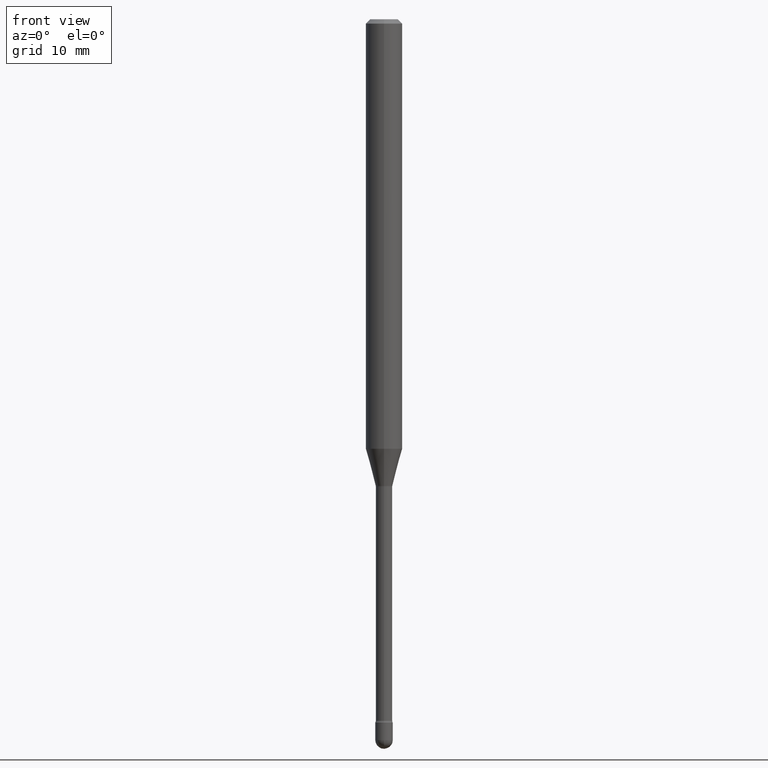
[diagram: clean part render]
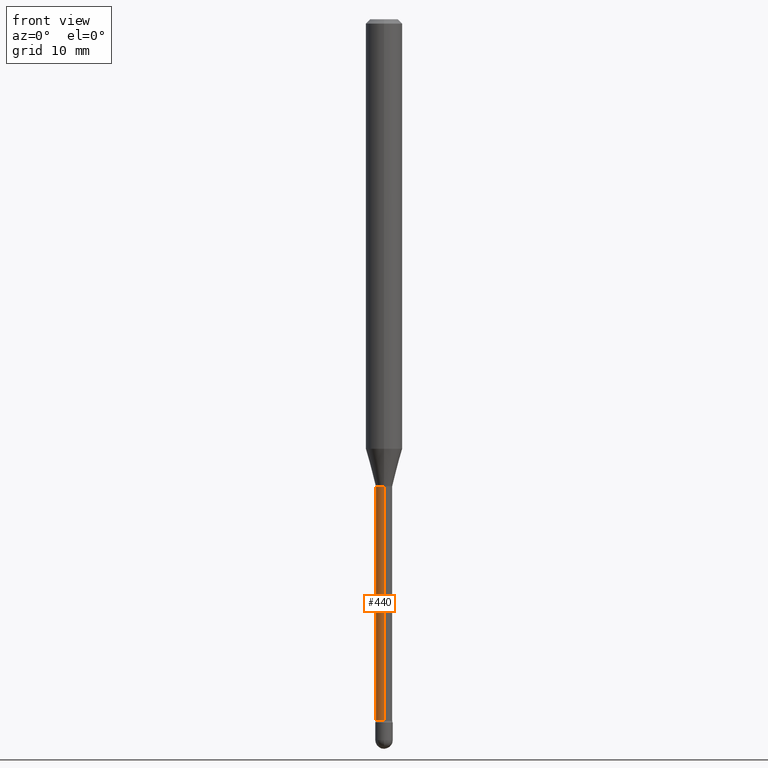
[diagram: same view with one face highlighted and labeled with its STEP entity id]
A machine part, front view. The second image highlights one B-rep face of the part: STEP entity #440.
In plain terms, the highlighted cylindrical surface (edge-blend (fillet) strip) has radius 0.7163 mm, axis along (-0, 0, 1).
Its self-contained STEP definition (entity closure, byte-faithful):
#6 = EDGE_LOOP ( 'NONE', ( #57, #165, #459, #301 ) ) ;
#13 = CARTESIAN_POINT ( 'NONE',  ( 3.917642684829632666E-29, -5.593174406773630015E-15, -1.601974787463811278 ) ) ;
#51 = EDGE_CURVE ( 'NONE', #555, #548, #511, .T. ) ;
#52 = CIRCLE ( 'NONE', #532, 0.02820000000000000284 ) ;
#55 = DIRECTION ( 'NONE',  ( -2.445508328524885386E-29, 3.491424740603154151E-15, 1.000000000000000000 ) ) ;
#57 = ORIENTED_EDGE ( 'NONE', *, *, #287, .F. ) ;
#77 = CARTESIAN_POINT ( 'NONE',  ( 5.876251790263210729E-29, -8.389458601808959728E-15, -2.402875394747777449 ) ) ;
#165 = ORIENTED_EDGE ( 'NONE', *, *, #265, .T. ) ;
#191 = DIRECTION ( 'NONE',  ( -6.982962677686265133E-15, -1.000000000000000000, 0.000000000000000000 ) ) ;
#194 = CARTESIAN_POINT ( 'NONE',  ( -1.969195475107530967E-16, -0.02820000000000005835, 5.765315765762551553E-16 ) ) ;
#195 = DIRECTION ( 'NONE',  ( -2.445508328524885105E-29, 3.491424740603154151E-15, 1.000000000000000000 ) ) ;
#202 = CARTESIAN_POINT ( 'NONE',  ( -1.169113584055446105E-44, 1.669184350826100908E-30, 4.780733988912460139E-16 ) ) ;
#204 = LINE ( 'NONE', #302, #295 ) ;
#225 = CIRCLE ( 'NONE', #542, 0.02820000000000011386 ) ;
#241 = DIRECTION ( 'NONE',  ( -2.445508328524885105E-29, 3.491424740603154151E-15, 1.000000000000000000 ) ) ;
#264 = VERTEX_POINT ( 'NONE', #566 ) ;
#265 = EDGE_CURVE ( 'NONE', #264, #555, #225, .T. ) ;
#266 = DIRECTION ( 'NONE',  ( -2.445508328524885105E-29, 3.491424740603154151E-15, 1.000000000000000000 ) ) ;
#287 = EDGE_CURVE ( 'NONE', #264, #424, #204, .T. ) ;
#295 = VECTOR ( 'NONE', #358, 39.37007874015748143 ) ;
#301 = ORIENTED_EDGE ( 'NONE', *, *, #443, .F. ) ;
#302 = CARTESIAN_POINT ( 'NONE',  ( 2.003730514843486177E-16, 0.02820000000000005835, 3.796152212062369219E-16 ) ) ;
#313 = AXIS2_PLACEMENT_3D ( 'NONE', #202, #241, #545 ) ;
#340 = CARTESIAN_POINT ( 'NONE',  ( -1.969195475107135058E-16, -0.02820000000000559212, -1.601974787463811278 ) ) ;
#358 = DIRECTION ( 'NONE',  ( -2.445508328524885386E-29, 3.491424740603154151E-15, 1.000000000000000000 ) ) ;
#369 = CYLINDRICAL_SURFACE ( 'NONE', #313, 0.02820000000000005835 ) ;
#406 = VECTOR ( 'NONE', #55, 39.37007874015748143 ) ;
#413 = FACE_OUTER_BOUND ( 'NONE', #6, .T. ) ;
#424 = VERTEX_POINT ( 'NONE', #447 ) ;
#439 = DIRECTION ( 'NONE',  ( -6.982962677686265922E-15, -1.000000000000000000, 0.000000000000000000 ) ) ;
#440 = ADVANCED_FACE ( 'NONE', ( #413 ), #369, .T. ) ;
#443 = EDGE_CURVE ( 'NONE', #424, #548, #52, .T. ) ;
#447 = CARTESIAN_POINT ( 'NONE',  ( 2.003730514844073386E-16, 0.02819999999999441009, -1.601974787463811278 ) ) ;
#459 = ORIENTED_EDGE ( 'NONE', *, *, #51, .T. ) ;
#464 = CARTESIAN_POINT ( 'NONE',  ( -1.969195475106947457E-16, -0.02820000000000849952, -2.402875394747777449 ) ) ;
#511 = LINE ( 'NONE', #194, #406 ) ;
#532 = AXIS2_PLACEMENT_3D ( 'NONE', #13, #195, #191 ) ;
#542 = AXIS2_PLACEMENT_3D ( 'NONE', #77, #266, #439 ) ;
#545 = DIRECTION ( 'NONE',  ( -6.982962677686265922E-15, -1.000000000000000000, 3.491424740603152967E-15 ) ) ;
#548 = VERTEX_POINT ( 'NONE', #340 ) ;
#555 = VERTEX_POINT ( 'NONE', #464 ) ;
#566 = CARTESIAN_POINT ( 'NONE',  ( 2.067679361062483002E-16, 0.02819999999999172474, -2.402875394747777449 ) ) ;